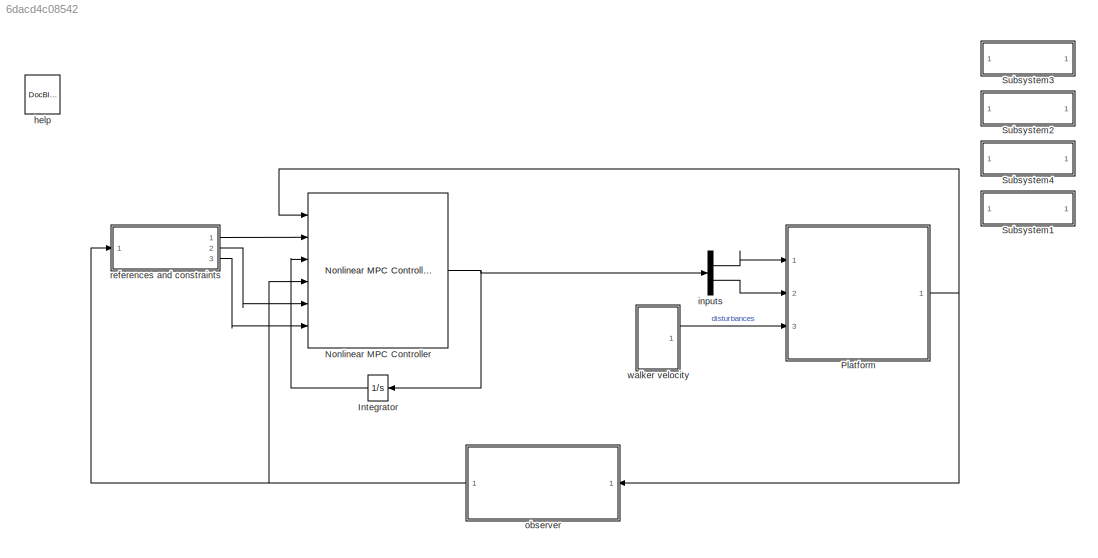
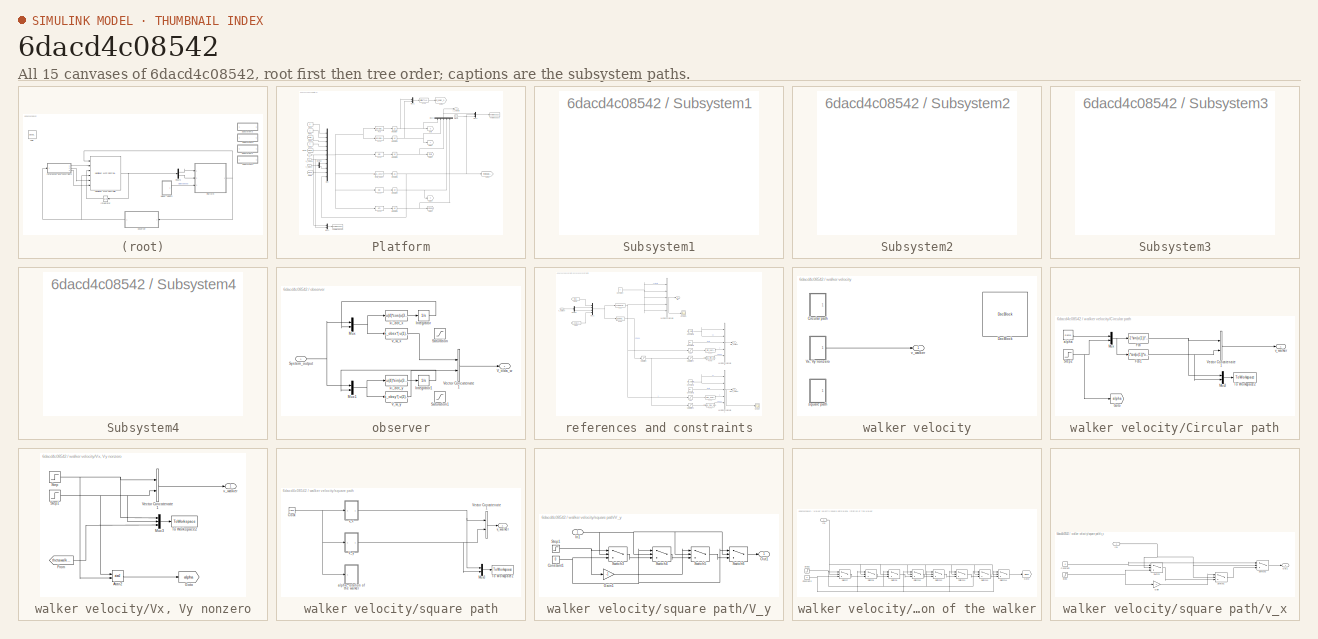
[diagram: thumbnail index - all 15 canvases of the model, root first then tree order]
MODEL slx_6dacd4c08542
KIND model
CONFIG AbsTol = auto
CONFIG EnableMultiTasking = off
CONFIG FixedStep = auto
CONFIG MaxStep = auto
CONFIG MinStep = auto
CONFIG RelTol = 1e-3
CONFIG SampleTimeConstraint = Unconstrained
CONFIG SolverName = VariableStepAuto
CONFIG StartTime = 0.0
CONFIG StopTime = T
BLOCK [Integrator] Integrator
  InitialCondition = [0, 0]
  Ports = [1, 1]
BLOCK [Reference] Nonlinear MPC Controller  REF=mpclib/Nonlinear MPC Controller  (lib defined in mdl_ae329e0e0455)
  Ports = [6, 1]
  SCDEnableBlockLinearizationSpecification = on
  SourceBlock = mpclib/Nonlinear MPC Controller
  SourceProductBaseCode = MP
  SourceType = NonlinearMPC
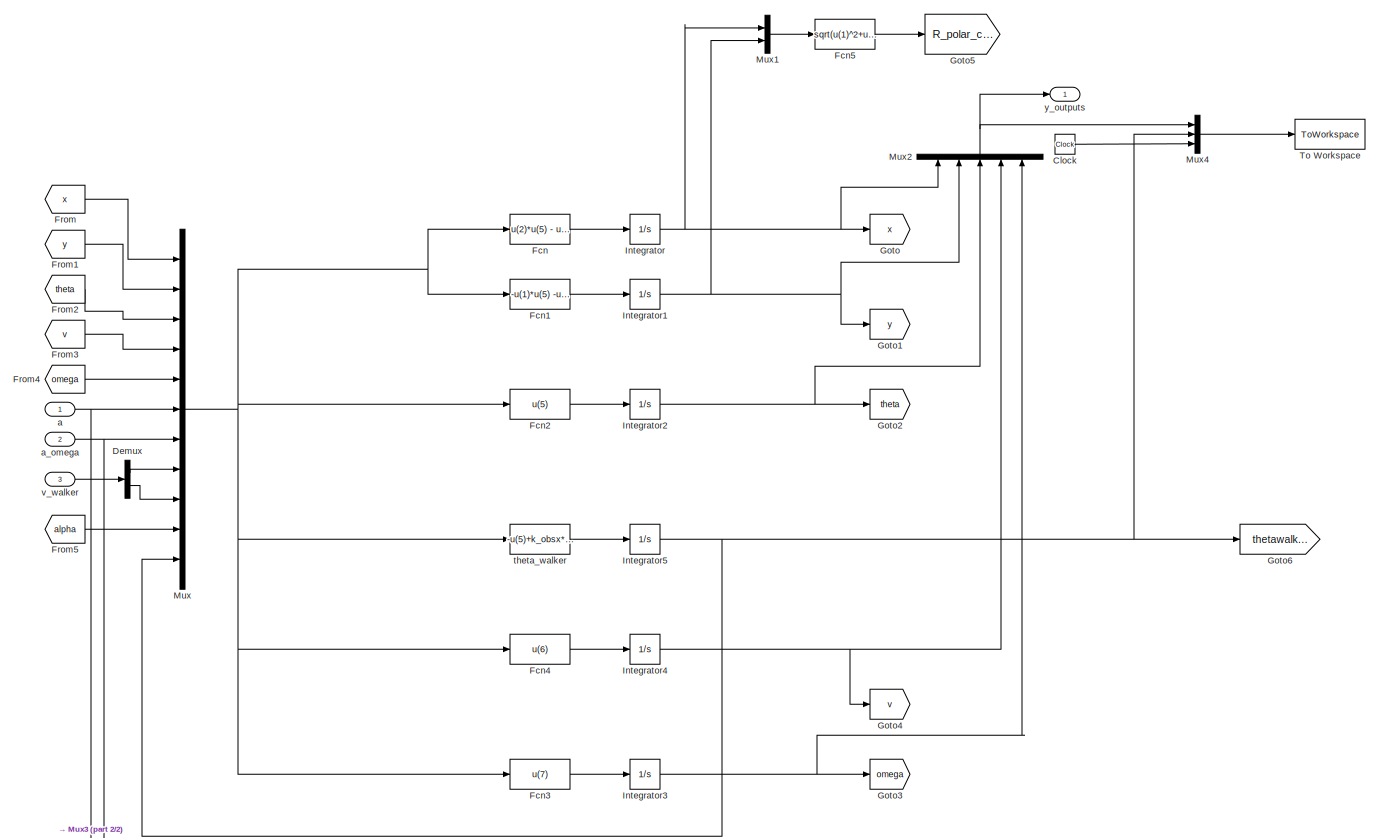
[diagram: Platform - part 1/2, most of the canvas]
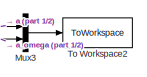
[diagram: Platform - part 2/2, bottom left region]
BLOCK [SubSystem] Platform
  Ports = [3, 1]
  RequestExecContextInheritance = off
BLOCK [Clock] Platform/Clock
BLOCK [Demux] Platform/Demux
  Outputs = 2
  Ports = [1, 2]
BLOCK [Fcn] Platform/Fcn
  Expr = u(2)*u(5) - u(4)*cos(u(3)) +u(8)
BLOCK [Fcn] Platform/Fcn1
  Expr = -u(1)*u(5) -u(4)*sin(u(3)) + u(9)
BLOCK [Fcn] Platform/Fcn2
  Expr = u(5)
BLOCK [Fcn] Platform/Fcn3
  Expr = u(7)
BLOCK [Fcn] Platform/Fcn4
  Expr = u(6)
BLOCK [Fcn] Platform/Fcn5
  Expr = sqrt(u(1)^2+u(2)^2)
BLOCK [From] Platform/From
  GotoTag = x
  TagVisibility = global
BLOCK [From] Platform/From1
  GotoTag = y
  TagVisibility = global
BLOCK [From] Platform/From2
  GotoTag = theta
  TagVisibility = global
BLOCK [From] Platform/From3
  GotoTag = v
  TagVisibility = global
BLOCK [From] Platform/From4
  GotoTag = omega
  TagVisibility = global
BLOCK [From] Platform/From5
  GotoTag = alpha
  TagVisibility = global
BLOCK [Goto] Platform/Goto
  GotoTag = x
  TagVisibility = global
BLOCK [Goto] Platform/Goto1
  GotoTag = y
  TagVisibility = global
BLOCK [Goto] Platform/Goto2
  GotoTag = theta
  TagVisibility = global
BLOCK [Goto] Platform/Goto3
  GotoTag = omega
  TagVisibility = global
BLOCK [Goto] Platform/Goto4
  GotoTag = v
  TagVisibility = global
BLOCK [Goto] Platform/Goto5
  GotoTag = R_polar_coord
  TagVisibility = global
BLOCK [Goto] Platform/Goto6
  GotoTag = thetawalker
  TagVisibility = global
BLOCK [Integrator] Platform/Integrator
  InitialCondition = condx
  Ports = [1, 1]
BLOCK [Integrator] Platform/Integrator1
  InitialCondition = condy
  Ports = [1, 1]
BLOCK [Integrator] Platform/Integrator2
  InitialCondition = condtheta
  Ports = [1, 1]
BLOCK [Integrator] Platform/Integrator3
  Ports = [1, 1]
BLOCK [Integrator] Platform/Integrator4
  Ports = [1, 1]
BLOCK [Integrator] Platform/Integrator5
  InitialCondition = condtheta
  Ports = [1, 1]
BLOCK [Mux] Platform/Mux
  DisplayOption = bar
  Inputs = 11
  Ports = [11, 1]
BLOCK [Mux] Platform/Mux1
  DisplayOption = bar
  Inputs = 2
  Ports = [2, 1]
BLOCK [Mux] Platform/Mux2
  DisplayOption = bar
  Inputs = 5
  NameLocation = right
  Ports = [5, 1]
BLOCK [Mux] Platform/Mux3
  DisplayOption = bar
  Inputs = 2
  Ports = [2, 1]
BLOCK [Mux] Platform/Mux4
  DisplayOption = bar
  Inputs = 3
  Ports = [3, 1]
BLOCK [ToWorkspace] Platform/To Workspace
  MaxDataPoints = inf
  Ports = [1]
  SampleTime = -1
  SaveFormat = Structure With Time
  VariableName = configuration
BLOCK [ToWorkspace] Platform/To Workspace2
  MaxDataPoints = inf
  Ports = [1]
  SampleTime = -1
  SaveFormat = Structure With Time
  VariableName = inputs
BLOCK [Inport] Platform/a
BLOCK [Inport] Platform/a_omega
  Port = 2
BLOCK [Fcn] Platform/theta_walker
  Expr = -u(5)+k_obsx*(u(10)-u(11))
BLOCK [Inport] Platform/v_walker
  Port = 3
BLOCK [Outport] Platform/y_outputs
BLOCK [SubSystem] Subsystem1
  OpenFcn = animation
  Ports = []
  RequestExecContextInheritance = off
  ShowPortLabels = none
BLOCK [SubSystem] Subsystem2
  OpenFcn = plot_inputs
  Ports = []
  RequestExecContextInheritance = off
  ShowPortLabels = none
BLOCK [SubSystem] Subsystem3
  OpenFcn = plot_states
  Ports = []
  RequestExecContextInheritance = off
  ShowPortLabels = none
BLOCK [SubSystem] Subsystem4
  OpenFcn = plot_trajectory_frames
  Ports = []
  RequestExecContextInheritance = off
  ShowPortLabels = none
BLOCK [Reference] help  REF=simulink/Model-Wide
Utilities/DocBlock
  Ports = []
  SourceBlock = simulink/Model-Wide\nUtilities/DocBlock
  SourceProductBaseCode = SL
  SourceType = DocBlock
  UserDataPersistent = on
BLOCK [Demux] inputs
  Outputs = 2
  Ports = [1, 2]
BLOCK [SubSystem] observer
  Ports = [1, 1]
  RequestExecContextInheritance = off
BLOCK [Integrator] observer/Integrator
  InitialCondition = condx
  Ports = [1, 1]
BLOCK [Integrator] observer/Integrator1
  InitialCondition = condy
  Ports = [1, 1]
BLOCK [Mux] observer/Mux
  DisplayOption = bar
  Inputs = 2
  Ports = [2, 1]
BLOCK [Mux] observer/Mux1
  DisplayOption = bar
  Inputs = 2
  Ports = [2, 1]
BLOCK [Saturate] observer/Saturation
  Commented = on
BLOCK [Saturate] observer/Saturation1
  Commented = on
BLOCK [Inport] observer/System_output
BLOCK [Outport] observer/V_tilda_w
BLOCK [Fcn] observer/V_w_x
  Expr = k_obsx*( u(1) - u(6))
BLOCK [Fcn] observer/V_w_y
  Expr = k_obsy*( u(2) - u(6))
BLOCK [Concatenate] observer/Vector Concatenate1
  ConcatenateDimension = 2
  Mode = Multidimensional array
  Ports = [2, 1]
BLOCK [Fcn] observer/xi_dot_x
  Expr = -u(4)*cos(u(3)) + u(2)*u(5) + k_obsx*( u(1) - u(6))
BLOCK [Fcn] observer/xi_dot_y
  Expr = -u(4)*sin(u(3)) - u(1)*u(5) + k_obsy*( u(2) - u(6))
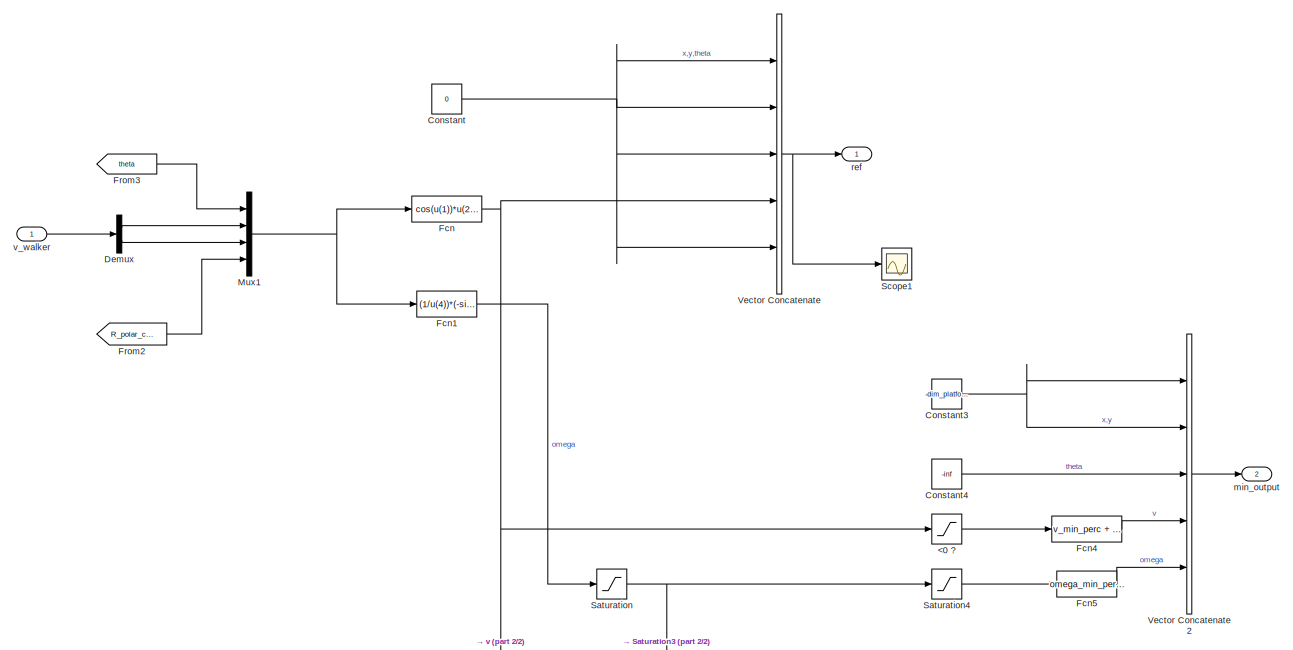
[diagram: references and constraints - part 1/2, full width, middle band]
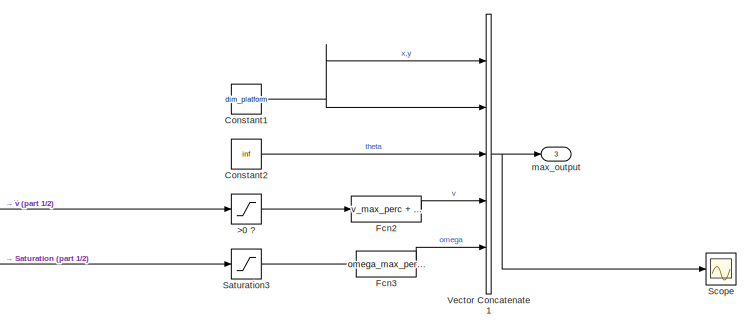
[diagram: references and constraints - part 2/2, bottom right region]
BLOCK [SubSystem] references and constraints
  Ports = [1, 3]
  RequestExecContextInheritance = off
BLOCK [Saturate] references and constraints/<0 ?
  LowerLimit = -inf
  UpperLimit = 0
BLOCK [Saturate] references and constraints/>0 ?
  LowerLimit = 0
  UpperLimit = inf
BLOCK [Constant] references and constraints/Constant
  NameLocation = top
  Value = 0
BLOCK [Constant] references and constraints/Constant1
  NameLocation = top
  Value = dim_platform
BLOCK [Constant] references and constraints/Constant2
  NameLocation = top
  Value = inf
BLOCK [Constant] references and constraints/Constant3
  NameLocation = top
  Value = -dim_platform
BLOCK [Constant] references and constraints/Constant4
  NameLocation = top
  Value = -inf
BLOCK [Demux] references and constraints/Demux
  Outputs = 2
  Ports = [1, 2]
BLOCK [Fcn] references and constraints/Fcn
  Expr = cos(u(1))*u(2)+sin(u(1))*u(3)
BLOCK [Fcn] references and constraints/Fcn1
  Expr = (1/u(4))*(-sin(u(1))*u(2)+cos(u(1))*u(3))
BLOCK [Fcn] references and constraints/Fcn2
  Expr = v_max_perc + u(1)
BLOCK [Fcn] references and constraints/Fcn3
  Expr = omega_max_perc + u(1)
BLOCK [Fcn] references and constraints/Fcn4
  Expr = v_min_perc + u(1)
BLOCK [Fcn] references and constraints/Fcn5
  Expr = omega_min_perc + u(1)
BLOCK [From] references and constraints/From2
  GotoTag = R_polar_coord
  TagVisibility = global
BLOCK [From] references and constraints/From3
  GotoTag = theta
  TagVisibility = global
BLOCK [Mux] references and constraints/Mux1
  DisplayOption = bar
  Ports = [4, 1]
BLOCK [Saturate] references and constraints/Saturation
  LowerLimit = -omega_sat
  UpperLimit = omega_sat
BLOCK [Saturate] references and constraints/Saturation3
  LowerLimit = 0
  UpperLimit = inf
BLOCK [Saturate] references and constraints/Saturation4
  LowerLimit = -inf
  UpperLimit = 0
BLOCK [Scope] references and constraints/Scope
  Floating = off
  NumInputPorts = 1
  Ports = [1]
  ScopeSpecificationString = Simulink.scopes.TimeScopeBlockCfg('CurrentConfiguration', extmgr.ConfigurationSet(extmgr.Configuration('Core','General UI',true),extmgr.Configuration('Core','Source UI',true),extmgr.Configuration('Sources','WiredSimulink',true,'DataLoggingVariableName','ScopeData1'),extmgr.Configuration('Visuals','Time Domain',true,'SerializedDisplays',{struct('MinYLimReal','-0.10164','MaxYLimReal','1.91475','YLab...<+1570ch>
BLOCK [Scope] references and constraints/Scope1
  Floating = off
  NumInputPorts = 1
  Ports = [1]
  ScopeSpecificationString = Simulink.scopes.TimeScopeBlockCfg('CurrentConfiguration', extmgr.ConfigurationSet(extmgr.Configuration('Core','General UI',true),extmgr.Configuration('Core','Source UI',true),extmgr.Configuration('Sources','WiredSimulink',true,'DataLoggingVariableName','ScopeData2'),extmgr.Configuration('Visuals','Time Domain',true,'SerializedDisplays',{struct('MinYLimReal','-0.12748','MaxYLimReal','1.14728','YLab...<+1596ch>
BLOCK [Concatenate] references and constraints/Vector Concatenate
  ConcatenateDimension = 2
  Mode = Multidimensional array
  NumInputs = 5
  Ports = [5, 1]
BLOCK [Concatenate] references and constraints/Vector Concatenate1
  ConcatenateDimension = 2
  Mode = Multidimensional array
  NumInputs = 5
  Ports = [5, 1]
BLOCK [Concatenate] references and constraints/Vector Concatenate2
  ConcatenateDimension = 2
  Mode = Multidimensional array
  NumInputs = 5
  Ports = [5, 1]
BLOCK [Outport] references and constraints/max_output
  Port = 3
BLOCK [Outport] references and constraints/min_output
  Port = 2
BLOCK [Outport] references and constraints/ref
BLOCK [Inport] references and constraints/v_walker
BLOCK [SubSystem] walker velocity
  Ports = [0, 1]
  RequestExecContextInheritance = off
BLOCK [SubSystem] walker velocity/Circular path
  Commented = on
  Ports = [0, 1]
  RequestExecContextInheritance = off
BLOCK [Fcn] walker velocity/Circular path/Fcn
  Expr = -1*sin(u(1))*u(2)
BLOCK [Fcn] walker velocity/Circular path/Fcn1
  Expr = 1*cos(u(1))*u(2)
BLOCK [Goto] walker velocity/Circular path/Goto
  GotoTag = alpha
  TagVisibility = global
BLOCK [Mux] walker velocity/Circular path/Mux
  DisplayOption = bar
  Inputs = 2
  Ports = [2, 1]
BLOCK [Mux] walker velocity/Circular path/Mux3
  DisplayOption = bar
  Inputs = 2
  Ports = [2, 1]
BLOCK [Step] walker velocity/Circular path/Step2
  After = slope_circ
  NameLocation = top
  SampleTime = 0
BLOCK [ToWorkspace] walker velocity/Circular path/To Workspace2
  MaxDataPoints = inf
  Ports = [1]
  SampleTime = -1
  SaveFormat = Structure With Time
  VariableName = walker
BLOCK [Concatenate] walker velocity/Circular path/Vector Concatenate1
  ConcatenateDimension = 2
  Mode = Multidimensional array
  Ports = [2, 1]
BLOCK [Reference] walker velocity/Circular path/alpha  REF=simulink/Sources/Ramp
  Ports = [0, 1]
  SourceBlock = simulink/Sources/Ramp
  SourceProductBaseCode = SL
  SourceType = Ramp
BLOCK [Outport] walker velocity/Circular path/v_walker
BLOCK [Reference] walker velocity/DocBlock  REF=simulink/Model-Wide
Utilities/DocBlock
  Ports = []
  SourceBlock = simulink/Model-Wide\nUtilities/DocBlock
  SourceProductBaseCode = SL
  SourceType = DocBlock
  UserDataPersistent = on
BLOCK [SubSystem] walker velocity/Vx, Vy nonzero
  Ports = [0, 1]
  RequestExecContextInheritance = off
BLOCK [Trigonometry] walker velocity/Vx, Vy nonzero/Atan2
  Operator = atan2
  Ports = [2, 1]
BLOCK [From] walker velocity/Vx, Vy nonzero/From
  GotoTag = thetawalker
  TagVisibility = global
BLOCK [Goto] walker velocity/Vx, Vy nonzero/Goto
  GotoTag = alpha
  TagVisibility = global
BLOCK [Mux] walker velocity/Vx, Vy nonzero/Mux3
  DisplayOption = bar
  Inputs = 3
  Ports = [3, 1]
BLOCK [Step] walker velocity/Vx, Vy nonzero/Step
  After = 0.7
  SampleTime = 0
  Time = 12
BLOCK [Step] walker velocity/Vx, Vy nonzero/Step1
  After = 0.4
  SampleTime = 0
  Time = 2
BLOCK [ToWorkspace] walker velocity/Vx, Vy nonzero/To Workspace2
  MaxDataPoints = inf
  Ports = [1]
  SampleTime = -1
  SaveFormat = Structure With Time
  VariableName = walker
BLOCK [Concatenate] walker velocity/Vx, Vy nonzero/Vector Concatenate1
  ConcatenateDimension = 2
  Mode = Multidimensional array
  Ports = [2, 1]
BLOCK [Outport] walker velocity/Vx, Vy nonzero/v_walker
BLOCK [SubSystem] walker velocity/square path
  Commented = on
  Ports = [0, 1]
  RequestExecContextInheritance = off
BLOCK [Clock] walker velocity/square path/Clock
BLOCK [Mux] walker velocity/square path/Mux3
  DisplayOption = bar
  Inputs = 2
  Ports = [2, 1]
BLOCK [ToWorkspace] walker velocity/square path/To Workspace2
  MaxDataPoints = inf
  Ports = [1]
  SampleTime = -1
  SaveFormat = Structure With Time
  VariableName = walker
BLOCK [SubSystem] walker velocity/square path/V_y
  Ports = [1, 1]
  RequestExecContextInheritance = off
BLOCK [Constant] walker velocity/square path/V_y/Constant1
  Value = 0
BLOCK [Gain] walker velocity/square path/V_y/Gain1
  Gain = -1
BLOCK [Inport] walker velocity/square path/V_y/In1
BLOCK [Outport] walker velocity/square path/V_y/Out1
BLOCK [Step] walker velocity/square path/V_y/Step1
  After = v_square
  SampleTime = 0
  Time = 0
BLOCK [Switch] walker velocity/square path/V_y/Switch3
  Criteria = u2 > Threshold
  InputSameDT = off
  SaturateOnIntegerOverflow = off
  Threshold = 2
BLOCK [Switch] walker velocity/square path/V_y/Switch4
  Criteria = u2 > Threshold
  InputSameDT = off
  SaturateOnIntegerOverflow = off
  Threshold = 4
BLOCK [Switch] walker velocity/square path/V_y/Switch5
  Criteria = u2 > Threshold
  InputSameDT = off
  SaturateOnIntegerOverflow = off
  Threshold = 6
BLOCK [Switch] walker velocity/square path/V_y/Switch6
  Criteria = u2 > Threshold
  InputSameDT = off
  SaturateOnIntegerOverflow = off
  Threshold = 8
BLOCK [Concatenate] walker velocity/square path/Vector Concatenate1
  ConcatenateDimension = 2
  Mode = Multidimensional array
  Ports = [2, 1]
BLOCK [SubSystem] walker velocity/square path/alpha, rotation of the walker
  Ports = [1]
  RequestExecContextInheritance = off
BLOCK [Constant] walker velocity/square path/alpha, rotation of the walker/Constant2
  Value = 0
BLOCK [Goto] walker velocity/square path/alpha, rotation of the walker/Goto
  GotoTag = alpha
  TagVisibility = global
BLOCK [Inport] walker velocity/square path/alpha, rotation of the walker/In1
BLOCK [Step] walker velocity/square path/alpha, rotation of the walker/Step2
  After = pi
  SampleTime = 0
  Time = 0
BLOCK [Switch] walker velocity/square path/alpha, rotation of the walker/Switch10
  Criteria = u2 > Threshold
  InputSameDT = off
  SaturateOnIntegerOverflow = off
  Threshold = 4.5
BLOCK [Switch] walker velocity/square path/alpha, rotation of the walker/Switch11
  Criteria = u2 > Threshold
  InputSameDT = off
  SaturateOnIntegerOverflow = off
  Threshold = 6.5
BLOCK [Switch] walker velocity/square path/alpha, rotation of the walker/Switch12
  Criteria = u2 > Threshold
  InputSameDT = off
  SaturateOnIntegerOverflow = off
  Threshold = 6
BLOCK [Switch] walker velocity/square path/alpha, rotation of the walker/Switch13
  Criteria = u2 > Threshold
  InputSameDT = off
  SaturateOnIntegerOverflow = off
  Threshold = 8
BLOCK [Switch] walker velocity/square path/alpha, rotation of the walker/Switch14
  Criteria = u2 > Threshold
  InputSameDT = off
  SaturateOnIntegerOverflow = off
  Threshold = 8.5
BLOCK [Switch] walker velocity/square path/alpha, rotation of the walker/Switch7
  Criteria = u2 > Threshold
  InputSameDT = off
  SaturateOnIntegerOverflow = off
  Threshold = 2
BLOCK [Switch] walker velocity/square path/alpha, rotation of the walker/Switch8
  Criteria = u2 > Threshold
  InputSameDT = off
  SaturateOnIntegerOverflow = off
  Threshold = 2.5
BLOCK [Switch] walker velocity/square path/alpha, rotation of the walker/Switch9
  Criteria = u2 > Threshold
  InputSameDT = off
  SaturateOnIntegerOverflow = off
  Threshold = 4
BLOCK [Outport] walker velocity/square path/v_walker
BLOCK [SubSystem] walker velocity/square path/v_x
  Ports = [1, 1]
  RequestExecContextInheritance = off
BLOCK [Constant] walker velocity/square path/v_x/Constant
  Value = 0
BLOCK [Gain] walker velocity/square path/v_x/Gain
  Gain = -1
BLOCK [Inport] walker velocity/square path/v_x/In1
BLOCK [Outport] walker velocity/square path/v_x/Out1
BLOCK [Step] walker velocity/square path/v_x/Step
  After = v_square
  SampleTime = 0
  Time = 0
BLOCK [Switch] walker velocity/square path/v_x/Switch
  Criteria = u2 > Threshold
  InputSameDT = off
  SaturateOnIntegerOverflow = off
  Threshold = 2
BLOCK [Switch] walker velocity/square path/v_x/Switch1
  Criteria = u2 > Threshold
  InputSameDT = off
  SaturateOnIntegerOverflow = off
  Threshold = 4
BLOCK [Switch] walker velocity/square path/v_x/Switch2
  Criteria = u2 > Threshold
  InputSameDT = off
  SaturateOnIntegerOverflow = off
  Threshold = 6
BLOCK [Outport] walker velocity/v_walker
LINE Integrator:1 -> Nonlinear MPC Controller:3
NET Nonlinear MPC Controller:1 -> Integrator:1, inputs:1
LINE Platform/Clock:1 -> Platform/Mux4:3
LINE Platform/Demux:1 -> Platform/Mux:8
LINE Platform/Demux:2 -> Platform/Mux:9
LINE Platform/Fcn1:1 -> Platform/Integrator1:1
LINE Platform/Fcn2:1 -> Platform/Integrator2:1
LINE Platform/Fcn3:1 -> Platform/Integrator3:1
LINE Platform/Fcn4:1 -> Platform/Integrator4:1
LINE Platform/Fcn5:1 -> Platform/Goto5:1
LINE Platform/Fcn:1 -> Platform/Integrator:1
LINE Platform/From1:1 -> Platform/Mux:2
LINE Platform/From2:1 -> Platform/Mux:3
LINE Platform/From3:1 -> Platform/Mux:4
LINE Platform/From4:1 -> Platform/Mux:5
LINE Platform/From5:1 -> Platform/Mux:10
LINE Platform/From:1 -> Platform/Mux:1
NET Platform/Integrator1:1 -> Platform/Goto1:1, Platform/Mux1:2, Platform/Mux2:2
NET Platform/Integrator2:1 -> Platform/Goto2:1, Platform/Mux2:3
NET Platform/Integrator3:1 -> Platform/Goto3:1, Platform/Mux2:5
NET Platform/Integrator4:1 -> Platform/Goto4:1, Platform/Mux2:4
NET Platform/Integrator5:1 -> Platform/Goto6:1, Platform/Mux4:2, Platform/Mux:11
NET Platform/Integrator:1 -> Platform/Goto:1, Platform/Mux1:1, Platform/Mux2:1
LINE Platform/Mux1:1 -> Platform/Fcn5:1
NET Platform/Mux2:1 -> Platform/Mux4:1, Platform/y_outputs:1
LINE Platform/Mux3:1 -> Platform/To Workspace2:1
LINE Platform/Mux4:1 -> Platform/To Workspace:1
NET Platform/Mux:1 -> Platform/Fcn1:1, Platform/Fcn2:1, Platform/Fcn3:1, Platform/Fcn4:1, Platform/Fcn:1, Platform/theta_walker:1
NET Platform/a:1 -> Platform/Mux3:1, Platform/Mux:6
NET Platform/a_omega:1 -> Platform/Mux3:2, Platform/Mux:7
LINE Platform/theta_walker:1 -> Platform/Integrator5:1
LINE Platform/v_walker:1 -> Platform/Demux:1
NET Platform:1 -> Nonlinear MPC Controller:1, observer:1
LINE inputs:1 -> Platform:1
LINE inputs:2 -> Platform:2
LINE observer/Integrator1:1 -> observer/Mux1:2
LINE observer/Integrator:1 -> observer/Mux:2
NET observer/Mux1:1 -> observer/V_w_y:1, observer/xi_dot_y:1
NET observer/Mux:1 -> observer/V_w_x:1, observer/xi_dot_x:1
NET observer/System_output:1 -> observer/Mux1:1, observer/Mux:1
LINE observer/V_w_x:1 -> observer/Vector Concatenate1:1
LINE observer/V_w_y:1 -> observer/Vector Concatenate1:2
LINE observer/Vector Concatenate1:1 -> observer/V_tilda_w:1
LINE observer/xi_dot_x:1 -> observer/Integrator:1
LINE observer/xi_dot_y:1 -> observer/Integrator1:1
NET observer:1 -> Nonlinear MPC Controller:4, references and constraints:1
LINE references and constraints/<0 ?:1 -> references and constraints/Fcn4:1
LINE references and constraints/>0 ?:1 -> references and constraints/Fcn2:1
NET references and constraints/Constant1:1 -> references and constraints/Vector Concatenate1:1, references and constraints/Vector Concatenate1:2
LINE references and constraints/Constant2:1 -> references and constraints/Vector Concatenate1:3
NET references and constraints/Constant3:1 -> references and constraints/Vector Concatenate2:1, references and constraints/Vector Concatenate2:2
LINE references and constraints/Constant4:1 -> references and constraints/Vector Concatenate2:3
NET references and constraints/Constant:1 -> references and constraints/Vector Concatenate:1, references and constraints/Vector Concatenate:2, references and constraints/Vector Concatenate:3, references and constraints/Vector Concatenate:5
LINE references and constraints/Demux:1 -> references and constraints/Mux1:2
LINE references and constraints/Demux:2 -> references and constraints/Mux1:3
LINE references and constraints/Fcn1:1 -> references and constraints/Saturation:1
LINE references and constraints/Fcn2:1 -> references and constraints/Vector Concatenate1:4
LINE references and constraints/Fcn3:1 -> references and constraints/Vector Concatenate1:5
LINE references and constraints/Fcn4:1 -> references and constraints/Vector Concatenate2:4
LINE references and constraints/Fcn5:1 -> references and constraints/Vector Concatenate2:5
NET references and constraints/Fcn:1 -> references and constraints/<0 ?:1, references and constraints/>0 ?:1, references and constraints/Vector Concatenate:4
LINE references and constraints/From2:1 -> references and constraints/Mux1:4
LINE references and constraints/From3:1 -> references and constraints/Mux1:1
NET references and constraints/Mux1:1 -> references and constraints/Fcn1:1, references and constraints/Fcn:1
LINE references and constraints/Saturation3:1 -> references and constraints/Fcn3:1
LINE references and constraints/Saturation4:1 -> references and constraints/Fcn5:1
NET references and constraints/Saturation:1 -> references and constraints/Saturation3:1, references and constraints/Saturation4:1
NET references and constraints/Vector Concatenate1:1 -> references and constraints/Scope:1, references and constraints/max_output:1
LINE references and constraints/Vector Concatenate2:1 -> references and constraints/min_output:1
NET references and constraints/Vector Concatenate:1 -> references and constraints/Scope1:1, references and constraints/ref:1
LINE references and constraints/v_walker:1 -> references and constraints/Demux:1
LINE references and constraints:1 -> Nonlinear MPC Controller:2
LINE references and constraints:2 -> Nonlinear MPC Controller:5
LINE references and constraints:3 -> Nonlinear MPC Controller:6
NET walker velocity/Circular path/Fcn1:1 -> walker velocity/Circular path/Mux3:2, walker velocity/Circular path/Vector Concatenate1:2
NET walker velocity/Circular path/Fcn:1 -> walker velocity/Circular path/Mux3:1, walker velocity/Circular path/Vector Concatenate1:1
LINE walker velocity/Circular path/Mux3:1 -> walker velocity/Circular path/To Workspace2:1
NET walker velocity/Circular path/Mux:1 -> walker velocity/Circular path/Fcn1:1, walker velocity/Circular path/Fcn:1
NET walker velocity/Circular path/Step2:1 -> walker velocity/Circular path/Goto:1, walker velocity/Circular path/Mux:2
LINE walker velocity/Circular path/Vector Concatenate1:1 -> walker velocity/Circular path/v_walker:1
LINE walker velocity/Circular path/alpha:1 -> walker velocity/Circular path/Mux:1
LINE walker velocity/Vx, Vy nonzero/Atan2:1 -> walker velocity/Vx, Vy nonzero/Goto:1
LINE walker velocity/Vx, Vy nonzero/From:1 -> walker velocity/Vx, Vy nonzero/Mux3:3
LINE walker velocity/Vx, Vy nonzero/Mux3:1 -> walker velocity/Vx, Vy nonzero/To Workspace2:1
NET walker velocity/Vx, Vy nonzero/Step1:1 -> walker velocity/Vx, Vy nonzero/Atan2:1, walker velocity/Vx, Vy nonzero/Mux3:2, walker velocity/Vx, Vy nonzero/Vector Concatenate1:2
NET walker velocity/Vx, Vy nonzero/Step:1 -> walker velocity/Vx, Vy nonzero/Atan2:2, walker velocity/Vx, Vy nonzero/Mux3:1, walker velocity/Vx, Vy nonzero/Vector Concatenate1:1
LINE walker velocity/Vx, Vy nonzero/Vector Concatenate1:1 -> walker velocity/Vx, Vy nonzero/v_walker:1
LINE walker velocity/Vx, Vy nonzero:1 -> walker velocity/v_walker:1
NET walker velocity/square path/Clock:1 -> walker velocity/square path/V_y:1, walker velocity/square path/alpha, rotation of the walker:1, walker velocity/square path/v_x:1
LINE walker velocity/square path/Mux3:1 -> walker velocity/square path/To Workspace2:1
NET walker velocity/square path/V_y/Constant1:1 -> walker velocity/square path/V_y/Switch3:3, walker velocity/square path/V_y/Switch4:1, walker velocity/square path/V_y/Switch6:1
LINE walker velocity/square path/V_y/Gain1:1 -> walker velocity/square path/V_y/Switch5:1
NET walker velocity/square path/V_y/In1:1 -> walker velocity/square path/V_y/Switch3:2, walker velocity/square path/V_y/Switch4:2, walker velocity/square path/V_y/Switch5:2, walker velocity/square path/V_y/Switch6:2
NET walker velocity/square path/V_y/Step1:1 -> walker velocity/square path/V_y/Gain1:1, walker velocity/square path/V_y/Switch3:1
LINE walker velocity/square path/V_y/Switch3:1 -> walker velocity/square path/V_y/Switch4:3
LINE walker velocity/square path/V_y/Switch4:1 -> walker velocity/square path/V_y/Switch5:3
LINE walker velocity/square path/V_y/Switch5:1 -> walker velocity/square path/V_y/Switch6:3
LINE walker velocity/square path/V_y/Switch6:1 -> walker velocity/square path/V_y/Out1:1
NET walker velocity/square path/V_y:1 -> walker velocity/square path/Mux3:2, walker velocity/square path/Vector Concatenate1:2
LINE walker velocity/square path/Vector Concatenate1:1 -> walker velocity/square path/v_walker:1
NET walker velocity/square path/alpha, rotation of the walker/Constant2:1 -> walker velocity/square path/alpha, rotation of the walker/Switch10:1, walker velocity/square path/alpha, rotation of the walker/Switch11:1, walker velocity/square path/alpha, rotation of the walker/Switch14:1, walker velocity/square path/alpha, rotation of the walker/Switch7:3, walker velocity/square path/alpha, rotation of the walker/Switch8:1
NET walker velocity/square path/alpha, rotation of the walker/In1:1 -> walker velocity/square path/alpha, rotation of the walker/Switch10:2, walker velocity/square path/alpha, rotation of the walker/Switch11:2, walker velocity/square path/alpha, rotation of the walker/Switch12:2, walker velocity/square path/alpha, rotation of the walker/Switch13:2, walker velocity/square path/alpha, rotation of the walker/Switch14:2, walker velocity/square path/alpha, rotation of the walker/Switch7:2, walker velocity/square path/alpha, rotation of the walker/Switch8:2, walker velocity/square path/alpha, rotation of the walker/Switch9:2
NET walker velocity/square path/alpha, rotation of the walker/Step2:1 -> walker velocity/square path/alpha, rotation of the walker/Switch12:1, walker velocity/square path/alpha, rotation of the walker/Switch13:1, walker velocity/square path/alpha, rotation of the walker/Switch7:1, walker velocity/square path/alpha, rotation of the walker/Switch9:1
LINE walker velocity/square path/alpha, rotation of the walker/Switch10:1 -> walker velocity/square path/alpha, rotation of the walker/Switch12:3
LINE walker velocity/square path/alpha, rotation of the walker/Switch11:1 -> walker velocity/square path/alpha, rotation of the walker/Switch13:3
LINE walker velocity/square path/alpha, rotation of the walker/Switch12:1 -> walker velocity/square path/alpha, rotation of the walker/Switch11:3
LINE walker velocity/square path/alpha, rotation of the walker/Switch13:1 -> walker velocity/square path/alpha, rotation of the walker/Switch14:3
LINE walker velocity/square path/alpha, rotation of the walker/Switch14:1 -> walker velocity/square path/alpha, rotation of the walker/Goto:1
LINE walker velocity/square path/alpha, rotation of the walker/Switch7:1 -> walker velocity/square path/alpha, rotation of the walker/Switch8:3
LINE walker velocity/square path/alpha, rotation of the walker/Switch8:1 -> walker velocity/square path/alpha, rotation of the walker/Switch9:3
LINE walker velocity/square path/alpha, rotation of the walker/Switch9:1 -> walker velocity/square path/alpha, rotation of the walker/Switch10:3
NET walker velocity/square path/v_x/Constant:1 -> walker velocity/square path/v_x/Switch2:1, walker velocity/square path/v_x/Switch:1
LINE walker velocity/square path/v_x/Gain:1 -> walker velocity/square path/v_x/Switch1:1
NET walker velocity/square path/v_x/In1:1 -> walker velocity/square path/v_x/Switch1:2, walker velocity/square path/v_x/Switch2:2, walker velocity/square path/v_x/Switch:2
NET walker velocity/square path/v_x/Step:1 -> walker velocity/square path/v_x/Gain:1, walker velocity/square path/v_x/Switch:3
LINE walker velocity/square path/v_x/Switch1:1 -> walker velocity/square path/v_x/Switch2:3
LINE walker velocity/square path/v_x/Switch2:1 -> walker velocity/square path/v_x/Out1:1
LINE walker velocity/square path/v_x/Switch:1 -> walker velocity/square path/v_x/Switch1:3
NET walker velocity/square path/v_x:1 -> walker velocity/square path/Mux3:1, walker velocity/square path/Vector Concatenate1:1
LINE walker velocity:1 -> Platform:3
note: NET lines group one-source signal fan-out (src -> all destinations, sorted); 1:1 wires keep LINE
